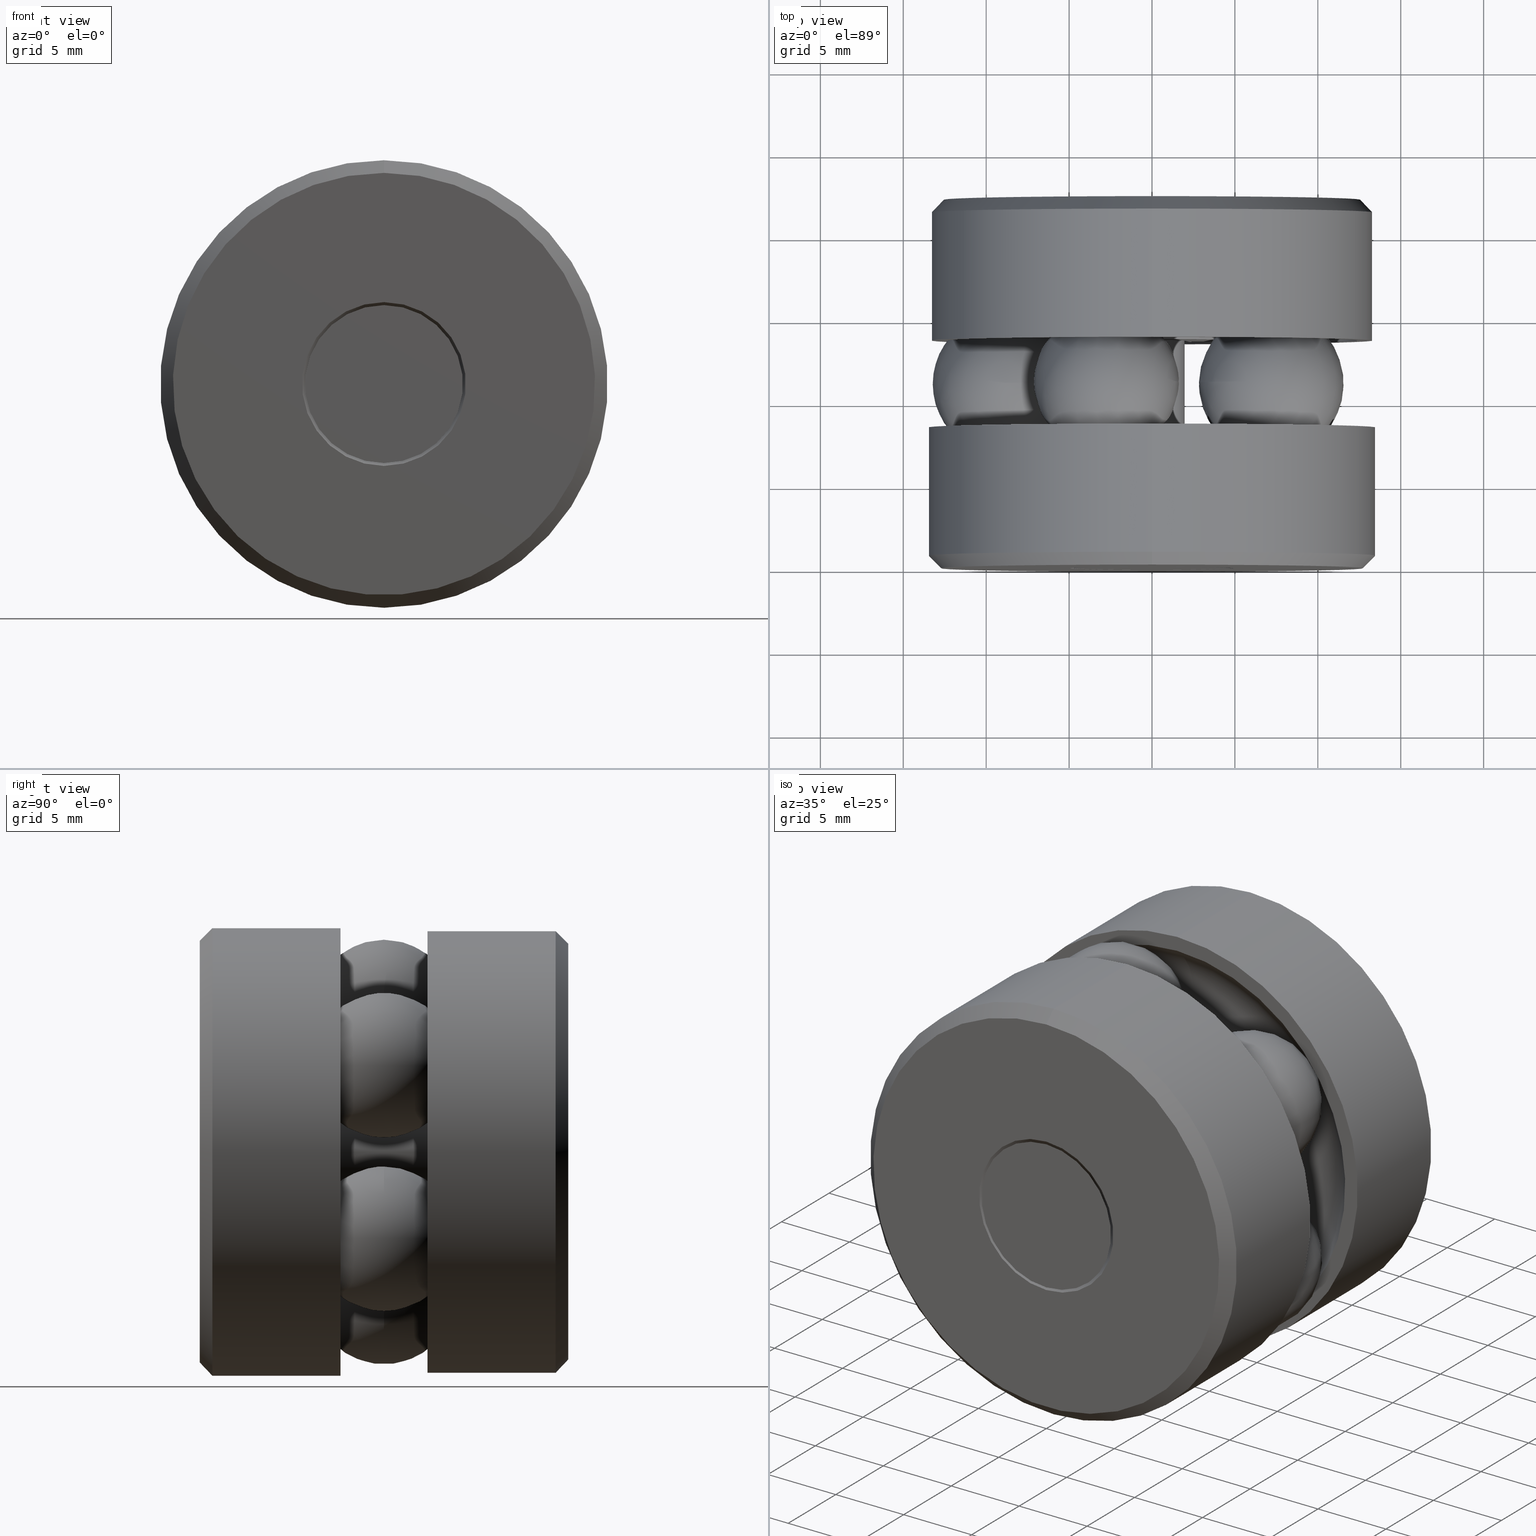
[diagram: canonical four-view strip — front | top / right | iso, engineering-drawing reading convention]
A machine part, canonical four-view strip (front | top / right | iso — engineering-drawing reading convention). The complete STEP part file that produces these views, byte-faithful:
ISO-10303-21;
HEADER;
FILE_DESCRIPTION (( 'STEP AP203' ),
    '1' );
FILE_NAME ('T-114RG_T-114RG-1001.step',
    '2016-02-04T15:34:11',
    ( '' ),
    ( '' ),
    'SwSTEP 2.0',
    'SolidWorks 2016',
    '' );
FILE_SCHEMA (( 'CONFIG_CONTROL_DESIGN' ));
ENDSEC;

DATA;
#1 = DIRECTION ( 'NONE',  ( -0.0000000000000000000, 1.000000000000000000, -0.0000000000000000000 ) ) ;
#2 = VERTEX_POINT ( 'NONE', #296 ) ;
#3 = PERSON_AND_ORGANIZATION_ROLE ( 'design_supplier' ) ;
#4 = DIRECTION ( 'NONE',  ( 0.0000000000000000000, 0.0000000000000000000, -1.000000000000000000 ) ) ;
#5 = AXIS2_PLACEMENT_3D ( 'NONE', #23, #377, #382 ) ;
#6 = ORIENTED_EDGE ( 'NONE', *, *, #196, .T. ) ;
#7 = EDGE_LOOP ( 'NONE', ( #51 ) ) ;
#8 = CC_DESIGN_PERSON_AND_ORGANIZATION_ASSIGNMENT ( #57, #14, ( #189 ) ) ;
#9 = COORDINATED_UNIVERSAL_TIME_OFFSET ( 5, 0, .BEHIND. ) ;
#10 = DIRECTION ( 'NONE',  ( 0.0000000000000000000, 0.0000000000000000000, 1.000000000000000000 ) ) ;
#11 = DIRECTION ( 'NONE',  ( -0.0000000000000000000, 1.000000000000000000, -0.0000000000000000000 ) ) ;
#12 = DIRECTION ( 'NONE',  ( -0.0000000000000000000, 1.000000000000000000, -0.0000000000000000000 ) ) ;
#13 = AXIS2_PLACEMENT_3D ( 'NONE', #409, #261, #268 ) ;
#14 = PERSON_AND_ORGANIZATION_ROLE ( 'design_owner' ) ;
#15 = SPHERICAL_SURFACE ( 'NONE', #35, 0.1719999999999999600 ) ;
#16 = CARTESIAN_POINT ( 'NONE',  ( -0.1944460678118644900, 0.8750000000000000000, 0.0000000000000000000 ) ) ;
#17 = PLANE ( 'NONE',  #5 ) ;
#18 = AXIS2_PLACEMENT_3D ( 'NONE', #123, #209, #214 ) ;
#19 = CARTESIAN_POINT ( 'NONE',  ( 0.0000000000000000000, 0.7656250000000000000, 0.07800000000000012500 ) ) ;
#20 = VERTEX_POINT ( 'NONE', #144 ) ;
#21 = CARTESIAN_POINT ( 'NONE',  ( 0.0000000000000000000, 0.0000000000000000000, 0.0000000000000000000 ) ) ;
#22 = APPLICATION_PROTOCOL_DEFINITION ( 'international standard', 'config_control_design', 1994, #425 ) ;
#23 = CARTESIAN_POINT ( 'NONE',  ( -0.2126499999999998100, 0.5406999999999999600, 0.0000000000000000000 ) ) ;
#24 = ORIENTED_EDGE ( 'NONE', *, *, #139, .F. ) ;
#25 = AXIS2_PLACEMENT_3D ( 'NONE', #457, #192, #290 ) ;
#26 = ORIENTED_EDGE ( 'NONE', *, *, #422, .T. ) ;
#27 =( NAMED_UNIT ( * ) SI_UNIT ( $, .STERADIAN. ) SOLID_ANGLE_UNIT ( ) );
#28 = ADVANCED_FACE ( 'NONE', ( #316, #253 ), #210, .F. ) ;
#29 = LOCAL_TIME ( 10, 34, 11.00000000000000000, #164 ) ;
#30 = AXIS2_PLACEMENT_3D ( 'NONE', #16, #69, #65 ) ;
#31 = ADVANCED_FACE ( 'NONE', ( #426 ), #391, .T. ) ;
#32 = CIRCLE ( 'NONE', #307, 0.08300000000000006000 ) ;
#33 = CARTESIAN_POINT ( 'NONE',  ( -0.5312500000000000000, 0.3343000000000000400, 0.0000000000000000000 ) ) ;
#34 = DIRECTION ( 'NONE',  ( 0.0000000000000000000, 0.0000000000000000000, 1.000000000000000000 ) ) ;
#35 = AXIS2_PLACEMENT_3D ( 'NONE', #166, #4, #416 ) ;
#36 = EDGE_LOOP ( 'NONE', ( #477 ) ) ;
#37 = EDGE_LOOP ( 'NONE', ( #278 ) ) ;
#38 = DIRECTION ( 'NONE',  ( -0.0000000000000000000, 1.000000000000000000, -0.0000000000000000000 ) ) ;
#39 = DIRECTION ( 'NONE',  ( -0.0000000000000000000, 1.000000000000000000, -0.0000000000000000000 ) ) ;
#40 = MANIFOLD_SOLID_BREP ( 'Revolve2[3]', #421 ) ;
#41 = CARTESIAN_POINT ( 'NONE',  ( 0.0000000000000000000, 0.1114460678118655400, 0.0000000000000000000 ) ) ;
#42 = CALENDAR_DATE ( 2016, 4, 2 ) ;
#43 = DIRECTION ( 'NONE',  ( 0.0000000000000000000, -1.000000000000000000, 0.0000000000000000000 ) ) ;
#44 = PRODUCT_DEFINITION ( 'UNKNOWN', '', #211, #536 ) ;
#45 = PLANE ( 'NONE',  #30 ) ;
#46 = CONICAL_SURFACE ( 'NONE', #143, 0.4942500000000001900, 0.7853981633974369500 ) ;
#47 = CARTESIAN_POINT ( 'NONE',  ( 0.0000000000000000000, 0.1093750000000000300, 0.0000000000000000000 ) ) ;
#48 = DIRECTION ( 'NONE',  ( 0.0000000000000000000, 0.0000000000000000000, 1.000000000000000000 ) ) ;
#49 = SHAPE_DEFINITION_REPRESENTATION ( #326, #331 ) ;
#50 = AXIS2_PLACEMENT_3D ( 'NONE', #59, #260, #392 ) ;
#51 = ORIENTED_EDGE ( 'NONE', *, *, #321, .F. ) ;
#52 = DIRECTION ( 'NONE',  ( -0.0000000000000000000, 1.000000000000000000, 0.0000000000000000000 ) ) ;
#53 = ORIENTED_EDGE ( 'NONE', *, *, #321, .T. ) ;
#54 = CARTESIAN_POINT ( 'NONE',  ( 0.0000000000000000000, 0.8750000000000000000, 0.4942500000000001900 ) ) ;
#55 = AXIS2_PLACEMENT_3D ( 'NONE', #485, #520, #147 ) ;
#56 = DIRECTION ( 'NONE',  ( 0.0000000000000000000, 0.0000000000000000000, 1.000000000000000000 ) ) ;
#57 = PERSON_AND_ORGANIZATION ( #222, #195 ) ;
#58 = CARTESIAN_POINT ( 'NONE',  ( 0.0000000000000000000, 0.0000000000000000000, 0.0000000000000000000 ) ) ;
#59 = CARTESIAN_POINT ( 'NONE',  ( 0.0000000000000000000, 0.8750000000000000000, 0.0000000000000000000 ) ) ;
#60 = AXIS2_PLACEMENT_3D ( 'NONE', #21, #12, #10 ) ;
#61 = CARTESIAN_POINT ( 'NONE',  ( 0.0000000000000000000, 0.5406999999999999600, 0.5242499999999999900 ) ) ;
#62 = SPHERICAL_SURFACE ( 'NONE', #355, 0.1719999999999999600 ) ;
#63 = AXIS2_PLACEMENT_3D ( 'NONE', #41, #39, #34 ) ;
#64 = DIRECTION ( 'NONE',  ( 0.0000000000000000000, 0.0000000000000000000, 1.000000000000000000 ) ) ;
#65 = DIRECTION ( 'NONE',  ( 0.0000000000000000000, 0.0000000000000000000, 1.000000000000000000 ) ) ;
#66 = CARTESIAN_POINT ( 'NONE',  ( 0.2833582022798234500, 0.4374999999999998900, -0.2058717846154411400 ) ) ;
#67 = FACE_BOUND ( 'NONE', #513, .T. ) ;
#68 = CARTESIAN_POINT ( 'NONE',  ( 0.0000000000000000000, 0.8750000000000000000, 0.0000000000000000000 ) ) ;
#69 = DIRECTION ( 'NONE',  ( -0.0000000000000000000, 1.000000000000000000, 0.0000000000000000000 ) ) ;
#70 = AXIS2_PLACEMENT_3D ( 'NONE', #198, #193, #201 ) ;
#71 = ORIENTED_EDGE ( 'NONE', *, *, #386, .F. ) ;
#72 = PLANE ( 'NONE',  #212 ) ;
#73 = EDGE_LOOP ( 'NONE', ( #160 ) ) ;
#74 = CARTESIAN_POINT ( 'NONE',  ( -0.2126499999999997800, 0.3343000000000001000, 0.0000000000000000000 ) ) ;
#75 = AXIS2_PLACEMENT_3D ( 'NONE', #176, #174, #173 ) ;
#76 =( LENGTH_UNIT ( ) NAMED_UNIT ( * ) SI_UNIT ( $, .METRE. ) );
#77 = PERSON_AND_ORGANIZATION_ROLE ( 'creator' ) ;
#78 = ADVANCED_FACE ( 'NONE', ( #535, #129 ), #455, .T. ) ;
#79 = APPROVAL ( #337, 'UNSPECIFIED' ) ;
#80 = FACE_OUTER_BOUND ( 'NONE', #233, .T. ) ;
#81 = ADVANCED_FACE ( 'NONE', ( ), #62, .T. ) ;
#82 = FACE_BOUND ( 'NONE', #420, .T. ) ;
#83 = DIRECTION ( 'NONE',  ( 0.0000000000000000000, 0.0000000000000000000, 1.000000000000000000 ) ) ;
#84 = AXIS2_PLACEMENT_3D ( 'NONE', #282, #262, #252 ) ;
#85 = ORIENTED_EDGE ( 'NONE', *, *, #287, .T. ) ;
#86 = ORIENTED_EDGE ( 'NONE', *, *, #231, .F. ) ;
#87 = CARTESIAN_POINT ( 'NONE',  ( 0.0000000000000000000, 0.03000000000000024200, 0.0000000000000000000 ) ) ;
#88 = CARTESIAN_POINT ( 'NONE',  ( 0.0000000000000000000, 0.5406999999999999600, 0.08300000000000010100 ) ) ;
#89 = LENGTH_MEASURE_WITH_UNIT ( LENGTH_MEASURE( 0.02539999999999999900 ), #76 );
#90 = AXIS2_PLACEMENT_3D ( 'NONE', #175, #405, #411 ) ;
#91 = MECHANICAL_CONTEXT ( 'NONE', #425, 'mechanical' ) ;
#92 = CIRCLE ( 'NONE', #75, 0.4942500000000001900 ) ;
#93 = ORIENTED_EDGE ( 'NONE', *, *, #376, .T. ) ;
#94 = AXIS2_PLACEMENT_3D ( 'NONE', #208, #206, #204 ) ;
#95 = CARTESIAN_POINT ( 'NONE',  ( 0.0000000000000000000, -2.039025924733208000E-018, 0.1944460678118643300 ) ) ;
#96 = COORDINATED_UNIVERSAL_TIME_OFFSET ( 5, 0, .BEHIND. ) ;
#97 = AXIS2_PLACEMENT_3D ( 'NONE', #297, #293, #313 ) ;
#98 = CARTESIAN_POINT ( 'NONE',  ( 0.0000000000000000000, -1.000892978959771700E-016, 0.5012499999999999700 ) ) ;
#99 = CARTESIAN_POINT ( 'NONE',  ( 0.0000000000000000000, 0.7635539321881345000, 0.08300000000000012900 ) ) ;
#100 = DIRECTION ( 'NONE',  ( -0.0000000000000000000, 1.000000000000000000, -0.0000000000000000000 ) ) ;
#101 = FACE_OUTER_BOUND ( 'NONE', #310, .T. ) ;
#102 = EDGE_LOOP ( 'NONE', ( #112 ) ) ;
#103 = AXIS2_PLACEMENT_3D ( 'NONE', #298, #512, #540 ) ;
#104 = CIRCLE ( 'NONE', #534, 0.1944460678118643300 ) ;
#105 = PERSON_AND_ORGANIZATION_ROLE ( 'classification_officer' ) ;
#106 = DIRECTION ( 'NONE',  ( 0.0000000000000000000, 0.0000000000000000000, 1.000000000000000000 ) ) ;
#107 = VERTEX_POINT ( 'NONE', #242 ) ;
#108 = EDGE_CURVE ( 'NONE', #172, #172, #508, .T. ) ;
#109 = SECURITY_CLASSIFICATION_LEVEL ( 'unclassified' ) ;
#110 = DIRECTION ( 'NONE',  ( -0.0000000000000000000, 1.000000000000000000, 0.0000000000000000000 ) ) ;
#111 = CYLINDRICAL_SURFACE ( 'NONE', #187, 0.08300000000000011500 ) ;
#112 = ORIENTED_EDGE ( 'NONE', *, *, #196, .F. ) ;
#113 = CC_DESIGN_APPROVAL ( #79, ( #44 ) ) ;
#114 = DIRECTION ( 'NONE',  ( 0.0000000000000000000, 0.0000000000000000000, 1.000000000000000000 ) ) ;
#115 = LOCAL_TIME ( 10, 34, 11.00000000000000000, #246 ) ;
#116 = EDGE_CURVE ( 'NONE', #486, #486, #306, .T. ) ;
#117 = DIRECTION ( 'NONE',  ( 0.0000000000000000000, 0.0000000000000000000, 1.000000000000000000 ) ) ;
#118 = DIRECTION ( 'NONE',  ( -0.0000000000000000000, 1.000000000000000000, -0.0000000000000000000 ) ) ;
#119 = CARTESIAN_POINT ( 'NONE',  ( 0.0000000000000000000, 0.4374999999999998900, 0.0000000000000000000 ) ) ;
#120 = CIRCLE ( 'NONE', #13, 0.08300000000000012900 ) ;
#121 = ORIENTED_EDGE ( 'NONE', *, *, #386, .T. ) ;
#122 = APPROVAL_STATUS ( 'not_yet_approved' ) ;
#123 = CARTESIAN_POINT ( 'NONE',  ( 0.0000000000000000000, 0.8750000000000000000, 0.0000000000000000000 ) ) ;
#124 = PERSON_AND_ORGANIZATION_ROLE ( 'creator' ) ;
#125 = DATE_TIME_ROLE ( 'classification_date' ) ;
#126 = CARTESIAN_POINT ( 'NONE',  ( 0.0000000000000000000, 0.0000000000000000000, 0.0000000000000000000 ) ) ;
#127 = VERTEX_POINT ( 'NONE', #433 ) ;
#128 = AXIS2_PLACEMENT_3D ( 'NONE', #404, #435, #463 ) ;
#129 = FACE_OUTER_BOUND ( 'NONE', #492, .T. ) ;
#130 = ADVANCED_FACE ( 'NONE', ( #197, #501 ), #46, .T. ) ;
#131 = CARTESIAN_POINT ( 'NONE',  ( -0.5242499999999999900, 0.5406999999999999600, 0.0000000000000000000 ) ) ;
#132 = DIRECTION ( 'NONE',  ( 0.0000000000000000000, 0.0000000000000000000, 1.000000000000000000 ) ) ;
#133 = EDGE_LOOP ( 'NONE', ( #26 ) ) ;
#134 = APPROVAL_STATUS ( 'not_yet_approved' ) ;
#135 = AXIS2_PLACEMENT_3D ( 'NONE', #387, #385, #384 ) ;
#136 = ADVANCED_FACE ( 'NONE', ( #80, #415 ), #111, .F. ) ;
#137 = APPROVAL_DATE_TIME ( #259, #245 ) ;
#138 = APPROVAL_ROLE ( '' ) ;
#139 = EDGE_CURVE ( 'NONE', #388, #388, #292, .T. ) ;
#140 = CONICAL_SURFACE ( 'NONE', #70, 0.5312500000000000000, 0.7853981633974429500 ) ;
#141 = ORIENTED_EDGE ( 'NONE', *, *, #299, .T. ) ;
#142 = VERTEX_POINT ( 'NONE', #315 ) ;
#143 = AXIS2_PLACEMENT_3D ( 'NONE', #427, #372, #479 ) ;
#144 = CARTESIAN_POINT ( 'NONE',  ( 0.0000000000000000000, 0.8449999999999994200, 0.5242499999999999900 ) ) ;
#145 = CLOSED_SHELL ( 'NONE', ( #502, #31, #466, #351, #500 ) ) ;
#146 = ORIENTED_EDGE ( 'NONE', *, *, #263, .T. ) ;
#147 = DIRECTION ( 'NONE',  ( 0.3090169943749447300, 0.0000000000000000000, -0.9510565162951545300 ) ) ;
#148 = APPROVAL_PERSON_ORGANIZATION ( #271, #245, #254 ) ;
#149 = CC_DESIGN_PERSON_AND_ORGANIZATION_ASSIGNMENT ( #280, #124, ( #44 ) ) ;
#150 = FACE_OUTER_BOUND ( 'NONE', #461, .T. ) ;
#151 = CIRCLE ( 'NONE', #50, 0.1873749999999990100 ) ;
#152 = AXIS2_PLACEMENT_3D ( 'NONE', #368, #365, #363 ) ;
#153 = CARTESIAN_POINT ( 'NONE',  ( 0.0000000000000000000, 0.3343000000000000400, 0.2126499999999998400 ) ) ;
#154 = DIRECTION ( 'NONE',  ( -0.0000000000000000000, 1.000000000000000000, 0.0000000000000000000 ) ) ;
#155 = SPHERICAL_SURFACE ( 'NONE', #55, 0.1719999999999999600 ) ;
#156 = VERTEX_POINT ( 'NONE', #352 ) ;
#157 = CARTESIAN_POINT ( 'NONE',  ( 0.0000000000000000000, 0.5406999999999999600, 0.2126499999999998400 ) ) ;
#158 = CARTESIAN_POINT ( 'NONE',  ( 0.0000000000000000000, 0.8750000000000000000, 0.1944460678118644900 ) ) ;
#159 = EDGE_LOOP ( 'NONE', ( #53 ) ) ;
#160 = ORIENTED_EDGE ( 'NONE', *, *, #258, .F. ) ;
#161 = MANIFOLD_SOLID_BREP ( 'Revolve2[1]', #145 ) ;
#162 = APPLICATION_CONTEXT ( 'configuration controlled 3d designs of mechanical parts and assemblies' ) ;
#163 = AXIS2_PLACEMENT_3D ( 'NONE', #367, #267, #402 ) ;
#164 = COORDINATED_UNIVERSAL_TIME_OFFSET ( 5, 0, .BEHIND. ) ;
#165 = AXIS2_PLACEMENT_3D ( 'NONE', #327, #325, #322 ) ;
#166 = CARTESIAN_POINT ( 'NONE',  ( -0.3502499999999998900, 0.4374999999999998900, 0.0000000000000000000 ) ) ;
#167 = CARTESIAN_POINT ( 'NONE',  ( 0.0000000000000000000, 0.8750000000000001100, 0.0000000000000000000 ) ) ;
#168 = CYLINDRICAL_SURFACE ( 'NONE', #216, 0.5242499999999999900 ) ;
#169 = CIRCLE ( 'NONE', #467, 0.07800000000000012500 ) ;
#170 = DIRECTION ( 'NONE',  ( -0.0000000000000000000, 1.000000000000000000, -0.0000000000000000000 ) ) ;
#171 = AXIS2_PLACEMENT_3D ( 'NONE', #312, #303, #302 ) ;
#172 = VERTEX_POINT ( 'NONE', #153 ) ;
#173 = DIRECTION ( 'NONE',  ( 0.0000000000000000000, 0.0000000000000000000, 1.000000000000000000 ) ) ;
#174 = DIRECTION ( 'NONE',  ( -0.0000000000000000000, 1.000000000000000000, -0.0000000000000000000 ) ) ;
#175 = CARTESIAN_POINT ( 'NONE',  ( 0.0000000000000000000, 0.5406999999999999600, 0.0000000000000000000 ) ) ;
#176 = CARTESIAN_POINT ( 'NONE',  ( 0.0000000000000000000, 0.8750000000000000000, 0.0000000000000000000 ) ) ;
#177 = ORIENTED_EDGE ( 'NONE', *, *, #108, .T. ) ;
#178 = ORIENTED_EDGE ( 'NONE', *, *, #228, .T. ) ;
#179 = EDGE_CURVE ( 'NONE', #275, #275, #343, .T. ) ;
#180 = DIRECTION ( 'NONE',  ( -0.5877852522924685900, 0.0000000000000000000, 0.8090169943749507800 ) ) ;
#181 = LOCAL_TIME ( 10, 34, 11.00000000000000000, #289 ) ;
#182 = ADVANCED_FACE ( 'NONE', ( #495, #523 ), #168, .T. ) ;
#183 = CC_DESIGN_DATE_AND_TIME_ASSIGNMENT ( #379, #188, ( #44 ) ) ;
#184 = CIRCLE ( 'NONE', #94, 0.2126499999999998400 ) ;
#185 = ADVANCED_FACE ( 'NONE', ( #401, #445 ), #483, .F. ) ;
#186 = DIRECTION ( 'NONE',  ( 0.0000000000000000000, -1.000000000000000000, 0.0000000000000000000 ) ) ;
#187 = AXIS2_PLACEMENT_3D ( 'NONE', #360, #357, #429 ) ;
#188 = DATE_TIME_ROLE ( 'creation_date' ) ;
#189 = PRODUCT ( 'T-114RG_T-114RG-1001', 'T-114RG_T-114RG-1001', '', ( #91 ) ) ;
#190 = CLOSED_SHELL ( 'NONE', ( #525 ) ) ;
#191 = ORIENTED_EDGE ( 'NONE', *, *, #370, .T. ) ;
#192 = DIRECTION ( 'NONE',  ( 0.0000000000000000000, -1.000000000000000000, 0.0000000000000000000 ) ) ;
#193 = DIRECTION ( 'NONE',  ( -0.0000000000000000000, 1.000000000000000000, -0.0000000000000000000 ) ) ;
#194 = AXIS2_PLACEMENT_3D ( 'NONE', #68, #38, #257 ) ;
#195 = ORGANIZATION ( 'UNSPECIFIED', 'UNSPECIFIED', '' ) ;
#196 = EDGE_CURVE ( 'NONE', #156, #156, #32, .T. ) ;
#197 = FACE_OUTER_BOUND ( 'NONE', #202, .T. ) ;
#198 = CARTESIAN_POINT ( 'NONE',  ( 0.0000000000000000000, 0.03000000000000024200, 0.0000000000000000000 ) ) ;
#199 = EDGE_CURVE ( 'NONE', #20, #20, #328, .T. ) ;
#200 = CONICAL_SURFACE ( 'NONE', #128, 0.08300000000000012900, 0.7853981633974435100 ) ;
#201 = DIRECTION ( 'NONE',  ( 0.0000000000000000000, 0.0000000000000000000, 1.000000000000000000 ) ) ;
#202 = EDGE_LOOP ( 'NONE', ( #447 ) ) ;
#203 = EDGE_LOOP ( 'NONE', ( #266 ) ) ;
#204 = DIRECTION ( 'NONE',  ( 0.0000000000000000000, 0.0000000000000000000, 1.000000000000000000 ) ) ;
#205 = MANIFOLD_SOLID_BREP ( 'BALLS[1]', #436 ) ;
#206 = DIRECTION ( 'NONE',  ( -0.0000000000000000000, 1.000000000000000000, -0.0000000000000000000 ) ) ;
#207 = EDGE_CURVE ( 'NONE', #476, #476, #184, .T. ) ;
#208 = CARTESIAN_POINT ( 'NONE',  ( 0.0000000000000000000, 0.5406999999999999600, 0.0000000000000000000 ) ) ;
#209 = DIRECTION ( 'NONE',  ( -0.0000000000000000000, 1.000000000000000000, -0.0000000000000000000 ) ) ;
#210 = TOROIDAL_SURFACE ( 'NONE', #399, 0.3502499999999998900, 0.1720000000000000400 ) ;
#211 = PRODUCT_DEFINITION_FORMATION_WITH_SPECIFIED_SOURCE ( 'ANY', '', #189, .NOT_KNOWN. ) ;
#212 = AXIS2_PLACEMENT_3D ( 'NONE', #74, #110, #132 ) ;
#213 = APPROVAL_DATE_TIME ( #319, #439 ) ;
#214 = DIRECTION ( 'NONE',  ( 0.0000000000000000000, 0.0000000000000000000, 1.000000000000000000 ) ) ;
#215 = FACE_OUTER_BOUND ( 'NONE', #451, .T. ) ;
#216 = AXIS2_PLACEMENT_3D ( 'NONE', #332, #340, #335 ) ;
#217 = EDGE_LOOP ( 'NONE', ( #465 ) ) ;
#218 = DIRECTION ( 'NONE',  ( 0.0000000000000000000, 0.0000000000000000000, 1.000000000000000000 ) ) ;
#219 = DIRECTION ( 'NONE',  ( -0.0000000000000000000, 1.000000000000000000, -0.0000000000000000000 ) ) ;
#220 = EDGE_LOOP ( 'NONE', ( #374 ) ) ;
#221 = AXIS2_PLACEMENT_3D ( 'NONE', #223, #219, #218 ) ;
#222 = PERSON ( 'UNSPECIFIED', 'UNSPECIFIED', 'UNSPECIFIED', ('UNSPECIFIED'), ('UNSPECIFIED'), ('UNSPECIFIED') ) ;
#223 = CARTESIAN_POINT ( 'NONE',  ( 0.0000000000000000000, 0.8449999999999994200, 0.0000000000000000000 ) ) ;
#224 = DIRECTION ( 'NONE',  ( 0.0000000000000000000, 0.0000000000000000000, 1.000000000000000000 ) ) ;
#225 = FACE_OUTER_BOUND ( 'NONE', #37, .T. ) ;
#226 = ADVANCED_FACE ( 'NONE', ( #283, #225 ), #473, .F. ) ;
#227 = CLOSED_SHELL ( 'NONE', ( #434 ) ) ;
#228 = EDGE_CURVE ( 'NONE', #373, #373, #92, .T. ) ;
#229 = ADVANCED_FACE ( 'NONE', ( #383, #274 ), #140, .T. ) ;
#230 = APPROVAL_PERSON_ORGANIZATION ( #333, #439, #138 ) ;
#231 = EDGE_CURVE ( 'NONE', #265, #265, #264, .T. ) ;
#232 = FACE_OUTER_BOUND ( 'NONE', #431, .T. ) ;
#233 = EDGE_LOOP ( 'NONE', ( #344 ) ) ;
#234 = DIRECTION ( 'NONE',  ( 0.0000000000000000000, -0.0000000000000000000, -1.000000000000000000 ) ) ;
#235 = CARTESIAN_POINT ( 'NONE',  ( 0.0000000000000000000, 0.3343000000000000400, 0.4878499999999998900 ) ) ;
#236 = VERTEX_POINT ( 'NONE', #95 ) ;
#237 = AXIS2_PLACEMENT_3D ( 'NONE', #414, #407, #413 ) ;
#238 = CARTESIAN_POINT ( 'NONE',  ( 0.0000000000000000000, 0.7656250000000000000, 0.0000000000000000000 ) ) ;
#239 = DIRECTION ( 'NONE',  ( 0.0000000000000000000, 0.0000000000000000000, 1.000000000000000000 ) ) ;
#240 = FACE_BOUND ( 'NONE', #203, .T. ) ;
#241 = EDGE_LOOP ( 'NONE', ( #478 ) ) ;
#242 = CARTESIAN_POINT ( 'NONE',  ( 0.0000000000000000000, 0.5406999999999999600, 0.4878499999999999500 ) ) ;
#243 = CARTESIAN_POINT ( 'NONE',  ( 0.0000000000000000000, 0.1114460678118655400, 0.08300000000000000400 ) ) ;
#244 = CARTESIAN_POINT ( 'NONE',  ( 0.0000000000000000000, 0.4374999999999998900, 0.0000000000000000000 ) ) ;
#245 = APPROVAL ( #122, 'UNSPECIFIED' ) ;
#246 = COORDINATED_UNIVERSAL_TIME_OFFSET ( 5, 0, .BEHIND. ) ;
#247 = DIRECTION ( 'NONE',  ( -0.0000000000000000000, 1.000000000000000000, -0.0000000000000000000 ) ) ;
#248 = CARTESIAN_POINT ( 'NONE',  ( 0.0000000000000000000, 0.3343000000000001500, 0.0000000000000000000 ) ) ;
#249 = FACE_OUTER_BOUND ( 'NONE', #514, .T. ) ;
#250 = EDGE_LOOP ( 'NONE', ( #285 ) ) ;
#251 = VERTEX_POINT ( 'NONE', #98 ) ;
#252 = DIRECTION ( 'NONE',  ( 0.0000000000000000000, 0.0000000000000000000, -1.000000000000000000 ) ) ;
#253 = FACE_OUTER_BOUND ( 'NONE', #456, .T. ) ;
#254 = APPROVAL_ROLE ( '' ) ;
#255 = AXIS2_PLACEMENT_3D ( 'NONE', #47, #43, #345 ) ;
#256 = EDGE_LOOP ( 'NONE', ( #498 ) ) ;
#257 = DIRECTION ( 'NONE',  ( 0.0000000000000000000, 0.0000000000000000000, 1.000000000000000000 ) ) ;
#258 = EDGE_CURVE ( 'NONE', #142, #142, #369, .T. ) ;
#259 = DATE_AND_TIME ( #366, #469 ) ;
#260 = DIRECTION ( 'NONE',  ( -0.0000000000000000000, 1.000000000000000000, -0.0000000000000000000 ) ) ;
#261 = DIRECTION ( 'NONE',  ( -0.0000000000000000000, 1.000000000000000000, -0.0000000000000000000 ) ) ;
#262 = DIRECTION ( 'NONE',  ( 0.0000000000000000000, -1.000000000000000000, 0.0000000000000000000 ) ) ;
#263 = EDGE_CURVE ( 'NONE', #2, #2, #151, .T. ) ;
#264 = CIRCLE ( 'NONE', #63, 0.08300000000000000400 ) ;
#265 = VERTEX_POINT ( 'NONE', #243 ) ;
#266 = ORIENTED_EDGE ( 'NONE', *, *, #287, .F. ) ;
#267 = DIRECTION ( 'NONE',  ( 0.9510565162951500900, 0.0000000000000000000, -0.3090169943749582200 ) ) ;
#268 = DIRECTION ( 'NONE',  ( 0.0000000000000000000, 0.0000000000000000000, 1.000000000000000000 ) ) ;
#269 = EDGE_LOOP ( 'NONE', ( #300 ) ) ;
#270 = ADVANCED_FACE ( 'NONE', ( ), #15, .T. ) ;
#271 = PERSON_AND_ORGANIZATION ( #222, #195 ) ;
#272 = ADVANCED_FACE ( 'NONE', ( #460, #541 ), #17, .T. ) ;
#273 = CC_DESIGN_APPROVAL ( #245, ( #211 ) ) ;
#274 = FACE_OUTER_BOUND ( 'NONE', #7, .T. ) ;
#275 = VERTEX_POINT ( 'NONE', #235 ) ;
#276 = DIRECTION ( 'NONE',  ( -0.8090169943749507800, 0.0000000000000000000, -0.5877852522924685900 ) ) ;
#277 = CLOSED_SHELL ( 'NONE', ( #270 ) ) ;
#278 = ORIENTED_EDGE ( 'NONE', *, *, #410, .F. ) ;
#279 = AXIS2_PLACEMENT_3D ( 'NONE', #33, #52, #48 ) ;
#280 = PERSON_AND_ORGANIZATION ( #222, #195 ) ;
#281 = UNCERTAINTY_MEASURE_WITH_UNIT (LENGTH_MEASURE( 1.000000000000000100E-005 ), #419, 'distance_accuracy_value', 'NONE');
#282 = CARTESIAN_POINT ( 'NONE',  ( 0.0000000000000000000, -2.039025924733208000E-018, 0.0000000000000000000 ) ) ;
#283 = FACE_BOUND ( 'NONE', #408, .T. ) ;
#284 = PLANE ( 'NONE',  #279 ) ;
#285 = ORIENTED_EDGE ( 'NONE', *, *, #258, .T. ) ;
#286 = ORIENTED_EDGE ( 'NONE', *, *, #294, .F. ) ;
#287 = EDGE_CURVE ( 'NONE', #462, #462, #515, .T. ) ;
#288 = PLANE ( 'NONE',  #364 ) ;
#289 = COORDINATED_UNIVERSAL_TIME_OFFSET ( 5, 0, .BEHIND. ) ;
#290 = DIRECTION ( 'NONE',  ( 0.0000000000000000000, -0.0000000000000000000, -1.000000000000000000 ) ) ;
#291 = CC_DESIGN_PERSON_AND_ORGANIZATION_ASSIGNMENT ( #539, #77, ( #211 ) ) ;
#292 = CIRCLE ( 'NONE', #165, 0.5312500000000000000 ) ;
#293 = DIRECTION ( 'NONE',  ( -0.0000000000000000000, 1.000000000000000000, -0.0000000000000000000 ) ) ;
#294 = EDGE_CURVE ( 'NONE', #358, #358, #120, .T. ) ;
#295 = FACE_BOUND ( 'NONE', #133, .T. ) ;
#296 = CARTESIAN_POINT ( 'NONE',  ( 0.0000000000000000000, 0.8750000000000000000, 0.1873749999999990100 ) ) ;
#297 = CARTESIAN_POINT ( 'NONE',  ( 0.0000000000000000000, 0.0000000000000000000, 0.0000000000000000000 ) ) ;
#298 = CARTESIAN_POINT ( 'NONE',  ( 0.0000000000000000000, -1.000892978959771700E-016, 0.0000000000000000000 ) ) ;
#299 = EDGE_CURVE ( 'NONE', #251, #251, #531, .T. ) ;
#300 = ORIENTED_EDGE ( 'NONE', *, *, #116, .T. ) ;
#301 = EDGE_LOOP ( 'NONE', ( #6 ) ) ;
#302 = DIRECTION ( 'NONE',  ( 0.0000000000000000000, 0.0000000000000000000, 1.000000000000000000 ) ) ;
#303 = DIRECTION ( 'NONE',  ( -0.0000000000000000000, 1.000000000000000000, -0.0000000000000000000 ) ) ;
#304 = ADVANCED_FACE ( 'NONE', ( #249, #354 ), #450, .F. ) ;
#305 = ADVANCED_FACE ( 'NONE', ( #101, #240 ), #45, .T. ) ;
#306 = CIRCLE ( 'NONE', #152, 0.5242499999999999900 ) ;
#307 = AXIS2_PLACEMENT_3D ( 'NONE', #248, #247, #239 ) ;
#308 = FACE_BOUND ( 'NONE', #464, .T. ) ;
#309 = FACE_OUTER_BOUND ( 'NONE', #324, .T. ) ;
#310 = EDGE_LOOP ( 'NONE', ( #178 ) ) ;
#311 = ORIENTED_EDGE ( 'NONE', *, *, #231, .T. ) ;
#312 = CARTESIAN_POINT ( 'NONE',  ( 0.0000000000000000000, 0.3343000000000000400, 0.0000000000000000000 ) ) ;
#313 = DIRECTION ( 'NONE',  ( 0.0000000000000000000, 0.0000000000000000000, 1.000000000000000000 ) ) ;
#314 = MANIFOLD_SOLID_BREP ( 'BALLS[3]', #490 ) ;
#315 = CARTESIAN_POINT ( 'NONE',  ( 0.0000000000000000000, 0.0000000000000000000, 0.1873749999999988500 ) ) ;
#316 = FACE_OUTER_BOUND ( 'NONE', #537, .T. ) ;
#317 = AXIS2_PLACEMENT_3D ( 'NONE', #468, #334, #224 ) ;
#318 = CC_DESIGN_PERSON_AND_ORGANIZATION_ASSIGNMENT ( #458, #3, ( #211 ) ) ;
#319 = DATE_AND_TIME ( #440, #517 ) ;
#320 = SPHERICAL_SURFACE ( 'NONE', #163, 0.1719999999999999600 ) ;
#321 = EDGE_CURVE ( 'NONE', #127, #127, #338, .T. ) ;
#322 = DIRECTION ( 'NONE',  ( 0.0000000000000000000, 0.0000000000000000000, 1.000000000000000000 ) ) ;
#323 = ORIENTED_EDGE ( 'NONE', *, *, #207, .T. ) ;
#324 = EDGE_LOOP ( 'NONE', ( #497 ) ) ;
#325 = DIRECTION ( 'NONE',  ( -0.0000000000000000000, 1.000000000000000000, -0.0000000000000000000 ) ) ;
#326 = PRODUCT_DEFINITION_SHAPE ( 'NONE', 'NONE',  #44 ) ;
#327 = CARTESIAN_POINT ( 'NONE',  ( 0.0000000000000000000, 0.3343000000000000400, 0.0000000000000000000 ) ) ;
#328 = CIRCLE ( 'NONE', #221, 0.5242499999999999900 ) ;
#329 = EDGE_LOOP ( 'NONE', ( #141 ) ) ;
#330 = PLANE ( 'NONE',  #446 ) ;
#331 = ADVANCED_BREP_SHAPE_REPRESENTATION ( 'T-114RG_T-114RG-1001', ( #161, #378, #40, #521, #205, #444, #314, #489, #526 ), #424 ) ;
#332 = CARTESIAN_POINT ( 'NONE',  ( 0.0000000000000000000, 0.0000000000000000000, 0.0000000000000000000 ) ) ;
#333 = PERSON_AND_ORGANIZATION ( #222, #195 ) ;
#334 = DIRECTION ( 'NONE',  ( -0.0000000000000000000, 1.000000000000000000, -0.0000000000000000000 ) ) ;
#335 = DIRECTION ( 'NONE',  ( 0.0000000000000000000, 0.0000000000000000000, 1.000000000000000000 ) ) ;
#336 = AXIS2_PLACEMENT_3D ( 'NONE', #167, #154, #395 ) ;
#337 = APPROVAL_STATUS ( 'not_yet_approved' ) ;
#338 = CIRCLE ( 'NONE', #449, 0.5312500000000000000 ) ;
#339 = ORIENTED_EDGE ( 'NONE', *, *, #179, .T. ) ;
#340 = DIRECTION ( 'NONE',  ( -0.0000000000000000000, 1.000000000000000000, -0.0000000000000000000 ) ) ;
#341 = APPROVAL_ROLE ( '' ) ;
#342 = VERTEX_POINT ( 'NONE', #530 ) ;
#343 = CIRCLE ( 'NONE', #171, 0.4878499999999998900 ) ;
#344 = ORIENTED_EDGE ( 'NONE', *, *, #294, .T. ) ;
#345 = DIRECTION ( 'NONE',  ( 0.0000000000000000000, 0.0000000000000000000, -1.000000000000000000 ) ) ;
#346 = CIRCLE ( 'NONE', #90, 0.4878499999999999500 ) ;
#347 = ADVANCED_FACE ( 'NONE', ( #232, #380 ), #72, .T. ) ;
#348 = CARTESIAN_POINT ( 'NONE',  ( 0.0000000000000000000, 0.3343000000000000400, 0.5312500000000000000 ) ) ;
#349 = PERSON_AND_ORGANIZATION ( #222, #195 ) ;
#350 = SECURITY_CLASSIFICATION ( '', '', #109 ) ;
#351 = ADVANCED_FACE ( 'NONE', ( #150, #475 ), #442, .T. ) ;
#352 = CARTESIAN_POINT ( 'NONE',  ( 0.0000000000000000000, 0.3343000000000001500, 0.08300000000000006000 ) ) ;
#353 = AXIS2_PLACEMENT_3D ( 'NONE', #244, #170, #56 ) ;
#354 = FACE_OUTER_BOUND ( 'NONE', #256, .T. ) ;
#355 = AXIS2_PLACEMENT_3D ( 'NONE', #66, #454, #452 ) ;
#356 = ORIENTED_EDGE ( 'NONE', *, *, #179, .F. ) ;
#357 = DIRECTION ( 'NONE',  ( -0.0000000000000000000, 1.000000000000000000, -0.0000000000000000000 ) ) ;
#358 = VERTEX_POINT ( 'NONE', #99 ) ;
#359 = FACE_BOUND ( 'NONE', #241, .T. ) ;
#360 = CARTESIAN_POINT ( 'NONE',  ( 0.0000000000000000000, 0.0000000000000000000, 0.0000000000000000000 ) ) ;
#361 = ORIENTED_EDGE ( 'NONE', *, *, #299, .F. ) ;
#362 = EDGE_LOOP ( 'NONE', ( #393 ) ) ;
#363 = DIRECTION ( 'NONE',  ( 0.0000000000000000000, 0.0000000000000000000, 1.000000000000000000 ) ) ;
#364 = AXIS2_PLACEMENT_3D ( 'NONE', #371, #494, #438 ) ;
#365 = DIRECTION ( 'NONE',  ( -0.0000000000000000000, 1.000000000000000000, -0.0000000000000000000 ) ) ;
#366 = CALENDAR_DATE ( 2016, 4, 2 ) ;
#367 = CARTESIAN_POINT ( 'NONE',  ( -0.1082332022798290900, 0.4374999999999998900, -0.3331075448323762000 ) ) ;
#368 = CARTESIAN_POINT ( 'NONE',  ( 0.0000000000000000000, 0.5406999999999999600, 0.0000000000000000000 ) ) ;
#369 = CIRCLE ( 'NONE', #60, 0.1873749999999988500 ) ;
#370 = EDGE_CURVE ( 'NONE', #533, #533, #538, .T. ) ;
#371 = CARTESIAN_POINT ( 'NONE',  ( -0.1873749999999988500, 0.0000000000000000000, 0.0000000000000000000 ) ) ;
#372 = DIRECTION ( 'NONE',  ( 0.0000000000000000000, -1.000000000000000000, 0.0000000000000000000 ) ) ;
#373 = VERTEX_POINT ( 'NONE', #54 ) ;
#374 = ORIENTED_EDGE ( 'NONE', *, *, #376, .F. ) ;
#375 = EDGE_LOOP ( 'NONE', ( #516 ) ) ;
#376 = EDGE_CURVE ( 'NONE', #453, #453, #169, .T. ) ;
#377 = DIRECTION ( 'NONE',  ( 0.0000000000000000000, -1.000000000000000000, 0.0000000000000000000 ) ) ;
#378 = MANIFOLD_SOLID_BREP ( 'Revolve2[2]', #474 ) ;
#379 = DATE_AND_TIME ( #480, #29 ) ;
#380 = FACE_BOUND ( 'NONE', #102, .T. ) ;
#381 = CC_DESIGN_PERSON_AND_ORGANIZATION_ASSIGNMENT ( #349, #105, ( #350 ) ) ;
#382 = DIRECTION ( 'NONE',  ( 0.0000000000000000000, -0.0000000000000000000, -1.000000000000000000 ) ) ;
#383 = FACE_BOUND ( 'NONE', #329, .T. ) ;
#384 = DIRECTION ( 'NONE',  ( 0.0000000000000000000, 0.0000000000000000000, 1.000000000000000000 ) ) ;
#385 = DIRECTION ( 'NONE',  ( -0.0000000000000000000, 1.000000000000000000, -0.0000000000000000000 ) ) ;
#386 = EDGE_CURVE ( 'NONE', #342, #342, #529, .T. ) ;
#387 = CARTESIAN_POINT ( 'NONE',  ( 0.0000000000000000000, 0.3343000000000000400, 0.0000000000000000000 ) ) ;
#388 = VERTEX_POINT ( 'NONE', #348 ) ;
#389 = APPLICATION_PROTOCOL_DEFINITION ( 'international standard', 'config_control_design', 1994, #162 ) ;
#390 = EDGE_LOOP ( 'NONE', ( #506 ) ) ;
#391 = PLANE ( 'NONE',  #336 ) ;
#392 = DIRECTION ( 'NONE',  ( 0.0000000000000000000, 0.0000000000000000000, 1.000000000000000000 ) ) ;
#393 = ORIENTED_EDGE ( 'NONE', *, *, #199, .F. ) ;
#394 = DIRECTION ( 'NONE',  ( -0.0000000000000000000, 1.000000000000000000, -0.0000000000000000000 ) ) ;
#395 = DIRECTION ( 'NONE',  ( 0.0000000000000000000, 0.0000000000000000000, 1.000000000000000000 ) ) ;
#396 = AXIS2_PLACEMENT_3D ( 'NONE', #484, #180, #276 ) ;
#397 = APPROVAL_DATE_TIME ( #493, #79 ) ;
#398 = ADVANCED_FACE ( 'NONE', ( #359, #487 ), #491, .T. ) ;
#399 = AXIS2_PLACEMENT_3D ( 'NONE', #119, #1, #511 ) ;
#400 = ADVANCED_FACE ( 'NONE', ( ), #155, .T. ) ;
#401 = FACE_OUTER_BOUND ( 'NONE', #301, .T. ) ;
#402 = DIRECTION ( 'NONE',  ( 0.3090169943749582200, 0.0000000000000000000, 0.9510565162951500900 ) ) ;
#403 = CONICAL_SURFACE ( 'NONE', #255, 0.07800000000000001400, 0.7853981633974428400 ) ;
#404 = CARTESIAN_POINT ( 'NONE',  ( 0.0000000000000000000, 0.7635539321881345000, 0.0000000000000000000 ) ) ;
#405 = DIRECTION ( 'NONE',  ( -0.0000000000000000000, 1.000000000000000000, -0.0000000000000000000 ) ) ;
#406 = EDGE_LOOP ( 'NONE', ( #86 ) ) ;
#407 = DIRECTION ( 'NONE',  ( -0.0000000000000000000, 1.000000000000000000, -0.0000000000000000000 ) ) ;
#408 = EDGE_LOOP ( 'NONE', ( #311 ) ) ;
#409 = CARTESIAN_POINT ( 'NONE',  ( 0.0000000000000000000, 0.7635539321881345000, 0.0000000000000000000 ) ) ;
#410 = EDGE_CURVE ( 'NONE', #236, #236, #104, .T. ) ;
#411 = DIRECTION ( 'NONE',  ( 0.0000000000000000000, 0.0000000000000000000, 1.000000000000000000 ) ) ;
#412 = APPROVAL_PERSON_ORGANIZATION ( #499, #79, #341 ) ;
#413 = DIRECTION ( 'NONE',  ( 0.0000000000000000000, 0.0000000000000000000, 1.000000000000000000 ) ) ;
#414 = CARTESIAN_POINT ( 'NONE',  ( 0.0000000000000000000, 0.0000000000000000000, 0.0000000000000000000 ) ) ;
#415 = FACE_OUTER_BOUND ( 'NONE', #542, .T. ) ;
#416 = DIRECTION ( 'NONE',  ( 1.000000000000000000, 0.0000000000000000000, 0.0000000000000000000 ) ) ;
#417 = CC_DESIGN_DATE_AND_TIME_ASSIGNMENT ( #448, #125, ( #350 ) ) ;
#418 = CONICAL_SURFACE ( 'NONE', #194, 0.1873749999999990100, 0.7853981633974432800 ) ;
#419 =( CONVERSION_BASED_UNIT ( 'INCH', #89 ) LENGTH_UNIT ( ) NAMED_UNIT ( #471 ) );
#420 = EDGE_LOOP ( 'NONE', ( #356 ) ) ;
#421 = CLOSED_SHELL ( 'NONE', ( #78, #229, #398, #226, #185, #347, #304, #470 ) ) ;
#422 = EDGE_CURVE ( 'NONE', #107, #107, #346, .T. ) ;
#423 =( NAMED_UNIT ( * ) PLANE_ANGLE_UNIT ( ) SI_UNIT ( $, .RADIAN. ) );
#424 =( GEOMETRIC_REPRESENTATION_CONTEXT ( 3 ) GLOBAL_UNCERTAINTY_ASSIGNED_CONTEXT ( ( #281 ) ) GLOBAL_UNIT_ASSIGNED_CONTEXT ( ( #419, #423, #27 ) ) REPRESENTATION_CONTEXT ( 'NONE', 'WORKASPACE' ) );
#425 = APPLICATION_CONTEXT ( 'configuration controlled 3d designs of mechanical parts and assemblies' ) ;
#426 = FACE_OUTER_BOUND ( 'NONE', #443, .T. ) ;
#427 = CARTESIAN_POINT ( 'NONE',  ( 0.0000000000000000000, 0.8750000000000000000, 0.0000000000000000000 ) ) ;
#428 = FACE_OUTER_BOUND ( 'NONE', #73, .T. ) ;
#429 = DIRECTION ( 'NONE',  ( 0.0000000000000000000, 0.0000000000000000000, 1.000000000000000000 ) ) ;
#430 = EDGE_LOOP ( 'NONE', ( #286 ) ) ;
#431 = EDGE_LOOP ( 'NONE', ( #177 ) ) ;
#432 = DIRECTION ( 'NONE',  ( 1.000000000000000000, 0.0000000000000000000, 0.0000000000000000000 ) ) ;
#433 = CARTESIAN_POINT ( 'NONE',  ( 0.0000000000000000000, 0.03000000000000024200, 0.5312500000000000000 ) ) ;
#434 = ADVANCED_FACE ( 'NONE', ( ), #320, .T. ) ;
#435 = DIRECTION ( 'NONE',  ( -0.0000000000000000000, 1.000000000000000000, -0.0000000000000000000 ) ) ;
#436 = CLOSED_SHELL ( 'NONE', ( #400 ) ) ;
#437 = ADVANCED_FACE ( 'NONE', ( #215, #518 ), #200, .F. ) ;
#438 = DIRECTION ( 'NONE',  ( 0.0000000000000000000, -0.0000000000000000000, -1.000000000000000000 ) ) ;
#439 = APPROVAL ( #134, 'UNSPECIFIED' ) ;
#440 = CALENDAR_DATE ( 2016, 4, 2 ) ;
#441 = FACE_OUTER_BOUND ( 'NONE', #250, .T. ) ;
#442 = CYLINDRICAL_SURFACE ( 'NONE', #509, 0.07800000000000006900 ) ;
#443 = EDGE_LOOP ( 'NONE', ( #146 ) ) ;
#444 = MANIFOLD_SOLID_BREP ( 'BALLS[2]', #190 ) ;
#445 = FACE_OUTER_BOUND ( 'NONE', #406, .T. ) ;
#446 = AXIS2_PLACEMENT_3D ( 'NONE', #131, #186, #234 ) ;
#447 = ORIENTED_EDGE ( 'NONE', *, *, #199, .T. ) ;
#448 = DATE_AND_TIME ( #527, #115 ) ;
#449 = AXIS2_PLACEMENT_3D ( 'NONE', #87, #118, #114 ) ;
#450 = TOROIDAL_SURFACE ( 'NONE', #353, 0.3502499999999998900, 0.1719999999999999300 ) ;
#451 = EDGE_LOOP ( 'NONE', ( #85 ) ) ;
#452 = DIRECTION ( 'NONE',  ( -0.8090169943749422300, 0.0000000000000000000, 0.5877852522924802400 ) ) ;
#453 = VERTEX_POINT ( 'NONE', #19 ) ;
#454 = DIRECTION ( 'NONE',  ( 0.5877852522924802400, -0.0000000000000000000, 0.8090169943749422300 ) ) ;
#455 = CYLINDRICAL_SURFACE ( 'NONE', #237, 0.5312500000000000000 ) ;
#456 = EDGE_LOOP ( 'NONE', ( #507 ) ) ;
#457 = CARTESIAN_POINT ( 'NONE',  ( -0.1944460678118643300, -5.106416191035518700E-017, 0.0000000000000000000 ) ) ;
#458 = PERSON_AND_ORGANIZATION ( #222, #195 ) ;
#459 = CC_DESIGN_APPROVAL ( #439, ( #350 ) ) ;
#460 = FACE_BOUND ( 'NONE', #519, .T. ) ;
#461 = EDGE_LOOP ( 'NONE', ( #121 ) ) ;
#462 = VERTEX_POINT ( 'NONE', #158 ) ;
#463 = DIRECTION ( 'NONE',  ( 0.0000000000000000000, 0.0000000000000000000, 1.000000000000000000 ) ) ;
#464 = EDGE_LOOP ( 'NONE', ( #93 ) ) ;
#465 = ORIENTED_EDGE ( 'NONE', *, *, #207, .F. ) ;
#466 = ADVANCED_FACE ( 'NONE', ( #308, #309 ), #418, .T. ) ;
#467 = AXIS2_PLACEMENT_3D ( 'NONE', #238, #394, #83 ) ;
#468 = CARTESIAN_POINT ( 'NONE',  ( 0.0000000000000000000, 0.1093750000000000300, 0.0000000000000000000 ) ) ;
#469 = LOCAL_TIME ( 10, 34, 11.00000000000000000, #9 ) ;
#470 = ADVANCED_FACE ( 'NONE', ( #510, #82 ), #284, .T. ) ;
#471 = DIMENSIONAL_EXPONENTS ( 1.000000000000000000, 0.0000000000000000000, 0.0000000000000000000, 0.0000000000000000000, 0.0000000000000000000, 0.0000000000000000000, 0.0000000000000000000 ) ;
#472 = DIRECTION ( 'NONE',  ( -0.0000000000000000000, 1.000000000000000000, -0.0000000000000000000 ) ) ;
#473 = CONICAL_SURFACE ( 'NONE', #84, 0.1944460678118643300, 0.7853981633974428400 ) ;
#474 = CLOSED_SHELL ( 'NONE', ( #437, #136, #272, #28, #528, #182, #130, #305 ) ) ;
#475 = FACE_OUTER_BOUND ( 'NONE', #220, .T. ) ;
#476 = VERTEX_POINT ( 'NONE', #157 ) ;
#477 = ORIENTED_EDGE ( 'NONE', *, *, #139, .T. ) ;
#478 = ORIENTED_EDGE ( 'NONE', *, *, #410, .T. ) ;
#479 = DIRECTION ( 'NONE',  ( 0.0000000000000000000, 0.0000000000000000000, -1.000000000000000000 ) ) ;
#480 = CALENDAR_DATE ( 2016, 4, 2 ) ;
#481 = CARTESIAN_POINT ( 'NONE',  ( 0.0000000000000000000, -2.039025924733208000E-018, 0.0000000000000000000 ) ) ;
#482 = CC_DESIGN_SECURITY_CLASSIFICATION ( #350, ( #211 ) ) ;
#483 = CYLINDRICAL_SURFACE ( 'NONE', #97, 0.08300000000000004600 ) ;
#484 = CARTESIAN_POINT ( 'NONE',  ( 0.2833582022798264400, 0.4374999999999998900, 0.2058717846154370600 ) ) ;
#485 = CARTESIAN_POINT ( 'NONE',  ( -0.1082332022798243900, 0.4374999999999998900, 0.3331075448323778700 ) ) ;
#486 = VERTEX_POINT ( 'NONE', #61 ) ;
#487 = FACE_OUTER_BOUND ( 'NONE', #524, .T. ) ;
#488 = CARTESIAN_POINT ( 'NONE',  ( 0.0000000000000000000, 0.5406999999999999600, 0.0000000000000000000 ) ) ;
#489 = MANIFOLD_SOLID_BREP ( 'BALLS[4]', #227 ) ;
#490 = CLOSED_SHELL ( 'NONE', ( #81 ) ) ;
#491 = PLANE ( 'NONE',  #25 ) ;
#492 = EDGE_LOOP ( 'NONE', ( #24 ) ) ;
#493 = DATE_AND_TIME ( #42, #181 ) ;
#494 = DIRECTION ( 'NONE',  ( 0.0000000000000000000, -1.000000000000000000, 0.0000000000000000000 ) ) ;
#495 = FACE_OUTER_BOUND ( 'NONE', #269, .T. ) ;
#496 = SPHERICAL_SURFACE ( 'NONE', #396, 0.1719999999999999600 ) ;
#497 = ORIENTED_EDGE ( 'NONE', *, *, #263, .F. ) ;
#498 = ORIENTED_EDGE ( 'NONE', *, *, #108, .F. ) ;
#499 = PERSON_AND_ORGANIZATION ( #222, #195 ) ;
#500 = ADVANCED_FACE ( 'NONE', ( #441, #67 ), #403, .T. ) ;
#501 = FACE_BOUND ( 'NONE', #390, .T. ) ;
#502 = ADVANCED_FACE ( 'NONE', ( #428 ), #288, .T. ) ;
#503 = PRODUCT_RELATED_PRODUCT_CATEGORY ( 'detail', '', ( #189 ) ) ;
#504 = AXIS2_PLACEMENT_3D ( 'NONE', #488, #11, #522 ) ;
#505 = FACE_OUTER_BOUND ( 'NONE', #375, .T. ) ;
#506 = ORIENTED_EDGE ( 'NONE', *, *, #228, .F. ) ;
#507 = ORIENTED_EDGE ( 'NONE', *, *, #422, .F. ) ;
#508 = CIRCLE ( 'NONE', #135, 0.2126499999999998400 ) ;
#509 = AXIS2_PLACEMENT_3D ( 'NONE', #126, #100, #106 ) ;
#510 = FACE_OUTER_BOUND ( 'NONE', #36, .T. ) ;
#511 = DIRECTION ( 'NONE',  ( 0.0000000000000000000, 0.0000000000000000000, 1.000000000000000000 ) ) ;
#512 = DIRECTION ( 'NONE',  ( -0.0000000000000000000, 1.000000000000000000, -0.0000000000000000000 ) ) ;
#513 = EDGE_LOOP ( 'NONE', ( #71 ) ) ;
#514 = EDGE_LOOP ( 'NONE', ( #339 ) ) ;
#515 = CIRCLE ( 'NONE', #18, 0.1944460678118644900 ) ;
#516 = ORIENTED_EDGE ( 'NONE', *, *, #116, .F. ) ;
#517 = LOCAL_TIME ( 10, 34, 11.00000000000000000, #96 ) ;
#518 = FACE_BOUND ( 'NONE', #430, .T. ) ;
#519 = EDGE_LOOP ( 'NONE', ( #191 ) ) ;
#520 = DIRECTION ( 'NONE',  ( -0.9510565162951545300, 0.0000000000000000000, -0.3090169943749447300 ) ) ;
#521 = MANIFOLD_SOLID_BREP ( 'Revolve3', #277 ) ;
#522 = DIRECTION ( 'NONE',  ( 0.0000000000000000000, 0.0000000000000000000, 1.000000000000000000 ) ) ;
#523 = FACE_OUTER_BOUND ( 'NONE', #362, .T. ) ;
#524 = EDGE_LOOP ( 'NONE', ( #361 ) ) ;
#525 = ADVANCED_FACE ( 'NONE', ( ), #496, .T. ) ;
#526 = AXIS2_PLACEMENT_3D ( 'NONE', #58, #64, #432 ) ;
#527 = CALENDAR_DATE ( 2016, 4, 2 ) ;
#528 = ADVANCED_FACE ( 'NONE', ( #295, #505 ), #330, .T. ) ;
#529 = CIRCLE ( 'NONE', #317, 0.07800000000000001400 ) ;
#530 = CARTESIAN_POINT ( 'NONE',  ( 0.0000000000000000000, 0.1093750000000000300, 0.07800000000000001400 ) ) ;
#531 = CIRCLE ( 'NONE', #103, 0.5012499999999999700 ) ;
#532 = ORIENTED_EDGE ( 'NONE', *, *, #370, .F. ) ;
#533 = VERTEX_POINT ( 'NONE', #88 ) ;
#534 = AXIS2_PLACEMENT_3D ( 'NONE', #481, #472, #117 ) ;
#535 = FACE_OUTER_BOUND ( 'NONE', #159, .T. ) ;
#536 = DESIGN_CONTEXT ( 'detailed design', #162, 'design' ) ;
#537 = EDGE_LOOP ( 'NONE', ( #323 ) ) ;
#538 = CIRCLE ( 'NONE', #504, 0.08300000000000010100 ) ;
#539 = PERSON_AND_ORGANIZATION ( #222, #195 ) ;
#540 = DIRECTION ( 'NONE',  ( 0.0000000000000000000, 0.0000000000000000000, 1.000000000000000000 ) ) ;
#541 = FACE_OUTER_BOUND ( 'NONE', #217, .T. ) ;
#542 = EDGE_LOOP ( 'NONE', ( #532 ) ) ;
ENDSEC;
END-ISO-10303-21;
